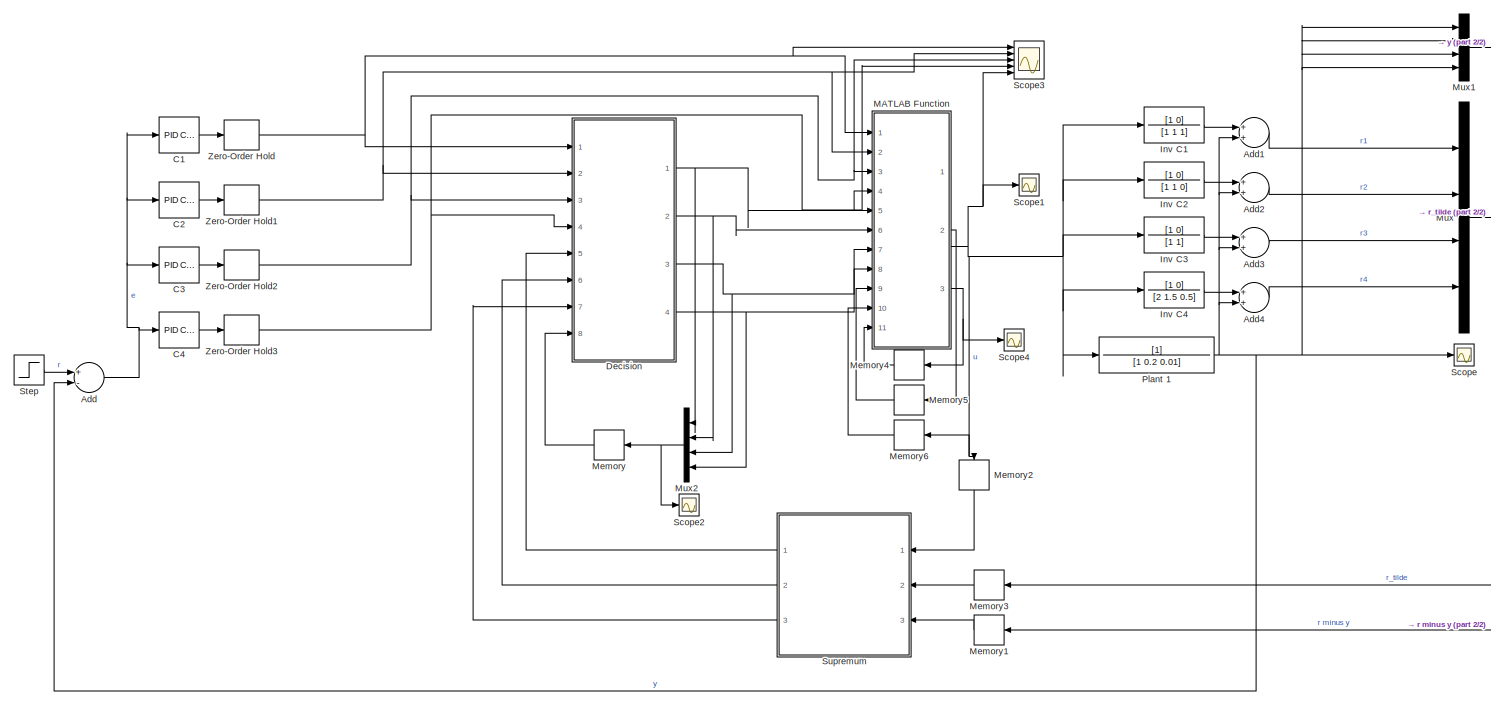
[diagram: root canvas - part 1/2, most of the canvas]
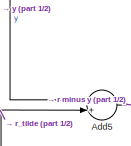
[diagram: root canvas - part 2/2, top right region]
MODEL slx_2074fb86404f
KIND model
CONFIG AbsTol = auto
CONFIG EnableMultiTasking = off
CONFIG FixedStep = auto
CONFIG MaxStep = auto
CONFIG MinStep = auto
CONFIG RelTol = 1e-3
CONFIG SampleTimeConstraint = Unconstrained
CONFIG Solver = VariableStepAuto
CONFIG SolverName = VariableStepAuto
CONFIG StartTime = 0.0
CONFIG StopTime = 100
BLOCK [Sum] Add
  InputSameDT = off
  Inputs = +-
  OutDataTypeStr = Inherit: Inherit via internal rule
  Ports = [2, 1]
  SaturateOnIntegerOverflow = off
BLOCK [Sum] Add1
  InputSameDT = off
  OutDataTypeStr = Inherit: Inherit via internal rule
  Ports = [2, 1]
  SaturateOnIntegerOverflow = off
BLOCK [Sum] Add2
  InputSameDT = off
  OutDataTypeStr = Inherit: Inherit via internal rule
  Ports = [2, 1]
  SaturateOnIntegerOverflow = off
BLOCK [Sum] Add3
  InputSameDT = off
  OutDataTypeStr = Inherit: Inherit via internal rule
  Ports = [2, 1]
  SaturateOnIntegerOverflow = off
BLOCK [Sum] Add4
  InputSameDT = off
  OutDataTypeStr = Inherit: Inherit via internal rule
  Ports = [2, 1]
  SaturateOnIntegerOverflow = off
BLOCK [Sum] Add5
  InputSameDT = off
  Inputs = -+
  OutDataTypeStr = Inherit: Inherit via internal rule
  Ports = [2, 1]
  SaturateOnIntegerOverflow = off
BLOCK [Reference] C1  REF=simulink/Continuous/PID Controller
  Ports = [1, 1]
  SourceBlock = simulink/Continuous/PID Controller
  SourceProductBaseCode = SL
  SourceProductName = Simulink
  SourceType = PID 1dof
BLOCK [Reference] C2  REF=simulink/Continuous/PID Controller
  Ports = [1, 1]
  SourceBlock = simulink/Continuous/PID Controller
  SourceProductBaseCode = SL
  SourceProductName = Simulink
  SourceType = PID 1dof
BLOCK [Reference] C3  REF=simulink/Continuous/PID Controller
  Ports = [1, 1]
  SourceBlock = simulink/Continuous/PID Controller
  SourceProductBaseCode = SL
  SourceProductName = Simulink
  SourceType = PID 1dof
BLOCK [Reference] C4  REF=simulink/Continuous/PID Controller
  Ports = [1, 1]
  SourceBlock = simulink/Continuous/PID Controller
  SourceProductBaseCode = SL
  SourceProductName = Simulink
  SourceType = PID 1dof
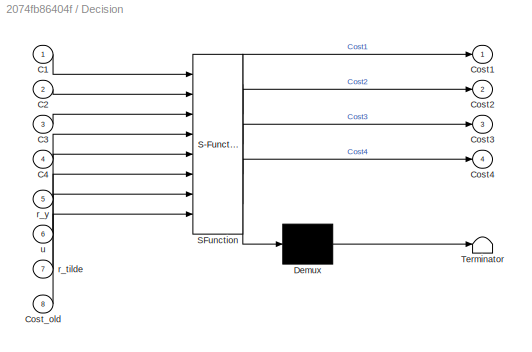
BLOCK [SubSystem] Decision
  ErrorFcn = Stateflow.Translate.translate
  PermitHierarchicalResolution = ExplicitOnly
  Ports = [8, 4]
  RequestExecContextInheritance = off
  SFBlockType = MATLAB Function
  TreatAsAtomicUnit = on
BLOCK [Demux] Decision/ Demux 
  Outputs = 1
  Ports = [1, 1]
BLOCK [S-Function] Decision/ SFunction 
  EnableBusSupport = on
  FunctionName = sf_sfun
  PortCounts = [8 5]
  Ports = [8, 5]
  SFcnIsStateOwnerBlock = off
  SFunctionDeploymentMode = off
  Tag = Stateflow S-Function HW6_switching 2
BLOCK [Terminator] Decision/ Terminator 
BLOCK [Inport] Decision/C1
  IconDisplay = Port number
BLOCK [Inport] Decision/C2
  IconDisplay = Port number
  Port = 2
BLOCK [Inport] Decision/C3
  IconDisplay = Port number
  Port = 3
BLOCK [Inport] Decision/C4
  IconDisplay = Port number
  Port = 4
BLOCK [Outport] Decision/Cost1
  IconDisplay = Port number
BLOCK [Outport] Decision/Cost2
  IconDisplay = Port number
  Port = 2
BLOCK [Outport] Decision/Cost3
  IconDisplay = Port number
  Port = 3
BLOCK [Outport] Decision/Cost4
  IconDisplay = Port number
  Port = 4
BLOCK [Inport] Decision/Cost_old
  IconDisplay = Port number
  Port = 8
BLOCK [Inport] Decision/r_tilde
  IconDisplay = Port number
  Port = 7
BLOCK [Inport] Decision/r_y
  IconDisplay = Port number
  Port = 5
BLOCK [Inport] Decision/u
  IconDisplay = Port number
  Port = 6
BLOCK [TransferFcn] Inv C1
  Denominator = [1 1 1]
  Numerator = [1 0]
BLOCK [TransferFcn] Inv C2
  Denominator = [1 1 0]
  Numerator = [1 0]
BLOCK [TransferFcn] Inv C3
  Denominator = [1 1]
  Numerator = [1 0]
BLOCK [TransferFcn] Inv C4
  Denominator = [2 1.5 0.5]
  Numerator = [1 0]
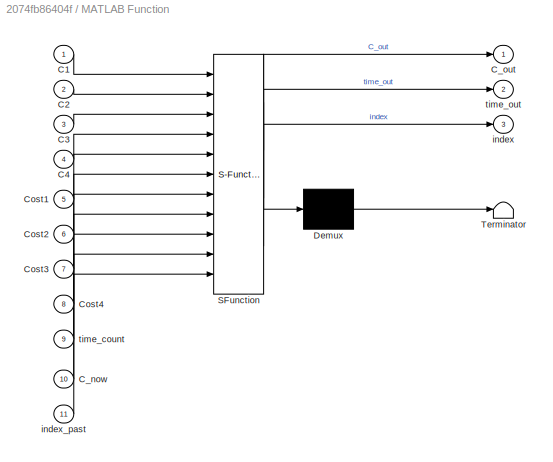
BLOCK [SubSystem] MATLAB Function
  ErrorFcn = Stateflow.Translate.translate
  PermitHierarchicalResolution = ExplicitOnly
  Ports = [11, 3]
  RequestExecContextInheritance = off
  SFBlockType = MATLAB Function
  TreatAsAtomicUnit = on
BLOCK [Demux] MATLAB Function/ Demux 
  Outputs = 1
  Ports = [1, 1]
BLOCK [S-Function] MATLAB Function/ SFunction 
  EnableBusSupport = on
  FunctionName = sf_sfun
  PortCounts = [11 4]
  Ports = [11, 4]
  SFcnIsStateOwnerBlock = off
  SFunctionDeploymentMode = off
  Tag = Stateflow S-Function HW6_switching 6
BLOCK [Terminator] MATLAB Function/ Terminator 
BLOCK [Inport] MATLAB Function/C1
  IconDisplay = Port number
BLOCK [Inport] MATLAB Function/C2
  IconDisplay = Port number
  Port = 2
BLOCK [Inport] MATLAB Function/C3
  IconDisplay = Port number
  Port = 3
BLOCK [Inport] MATLAB Function/C4
  IconDisplay = Port number
  Port = 4
BLOCK [Inport] MATLAB Function/C_now
  IconDisplay = Port number
  Port = 10
BLOCK [Outport] MATLAB Function/C_out
  IconDisplay = Port number
BLOCK [Inport] MATLAB Function/Cost1
  IconDisplay = Port number
  Port = 5
BLOCK [Inport] MATLAB Function/Cost2
  IconDisplay = Port number
  Port = 6
BLOCK [Inport] MATLAB Function/Cost3
  IconDisplay = Port number
  Port = 7
BLOCK [Inport] MATLAB Function/Cost4
  IconDisplay = Port number
  Port = 8
BLOCK [Outport] MATLAB Function/index
  IconDisplay = Port number
  Port = 3
BLOCK [Inport] MATLAB Function/index_past
  IconDisplay = Port number
  Port = 11
BLOCK [Inport] MATLAB Function/time_count
  IconDisplay = Port number
  Port = 9
BLOCK [Outport] MATLAB Function/time_out
  IconDisplay = Port number
  Port = 2
BLOCK [Memory] Memory
  InheritSampleTime = on
  InitialCondition = [0 0 0 0]
  LinearizeAsDelay = on
BLOCK [Memory] Memory1
  InitialCondition = [0 0 0 0]
BLOCK [Memory] Memory2
  InheritSampleTime = on
BLOCK [Memory] Memory3
  InitialCondition = [0 0 0 0]
BLOCK [Memory] Memory4
  InheritSampleTime = on
  InitialCondition = 1
  LinearizeAsDelay = on
BLOCK [Memory] Memory5
  InheritSampleTime = on
  LinearizeAsDelay = on
BLOCK [Memory] Memory6
  InheritSampleTime = on
  LinearizeAsDelay = on
BLOCK [Mux] Mux
  DisplayOption = bar
  Ports = [4, 1]
BLOCK [Mux] Mux1
  DisplayOption = bar
  Ports = [4, 1]
BLOCK [Mux] Mux2
  DisplayOption = bar
  Ports = [4, 1]
BLOCK [TransferFcn] Plant 1
  Denominator = [1 0.2 0.01]
BLOCK [Scope] Scope
  Floating = off
  NumInputPorts = 1
  Ports = [1]
  ScopeSpecificationString = Simulink.scopes.TimeScopeBlockCfg('CurrentConfiguration', extmgr.ConfigurationSet(extmgr.Configuration('Core','General UI',true),extmgr.Configuration('Core','Source UI',true),extmgr.Configuration('Sources','WiredSimulink',true),extmgr.Configuration('Visuals','Time Domain',true,'SerializedDisplays',{struct('MinYLimReal','-16.10739','MaxYLimReal','22.45845','YLabelReal','','MinYLimMag','0.00000','Ma...<+1354ch>
BLOCK [Scope] Scope1
  Floating = off
  NumInputPorts = 1
  Ports = [1]
  ScopeSpecificationString = Simulink.scopes.TimeScopeBlockCfg('CurrentConfiguration', extmgr.ConfigurationSet(extmgr.Configuration('Core','General UI',true),extmgr.Configuration('Core','Source UI',true),extmgr.Configuration('Sources','WiredSimulink',true,'DataLoggingVariableName','ScopeData1'),extmgr.Configuration('Visuals','Time Domain',true,'SerializedDisplays',{struct('MinYLimReal','-23.23433','MaxYLimReal','114.80381','Y...<+1416ch>
BLOCK [Scope] Scope2
  Floating = off
  NumInputPorts = 1
  Ports = [1]
  ScopeSpecificationString = Simulink.scopes.TimeScopeBlockCfg('CurrentConfiguration', extmgr.ConfigurationSet(extmgr.Configuration('Core','General UI',true),extmgr.Configuration('Core','Source UI',true),extmgr.Configuration('Sources','WiredSimulink',true,'DataLoggingVariableName','ScopeData2'),extmgr.Configuration('Visuals','Time Domain',true,'SerializedDisplays',{struct('MinYLimReal','-1275.125','MaxYLimReal','11476.125','Y...<+1573ch>
BLOCK [Scope] Scope3
  Floating = off
  NumInputPorts = 5
  Ports = [5]
  ScopeSpecificationString = Simulink.scopes.TimeScopeBlockCfg('CurrentConfiguration', extmgr.ConfigurationSet(extmgr.Configuration('Core','General UI',true),extmgr.Configuration('Core','Source UI',true),extmgr.Configuration('Sources','WiredSimulink',true,'DataLoggingVariableName','ScopeData3'),extmgr.Configuration('Visuals','Time Domain',true,'SerializedDisplays',{struct('MinYLimReal','-74.37371','MaxYLimReal','177.15263','Y...<+1603ch>
BLOCK [Scope] Scope4
  Floating = off
  NumInputPorts = 1
  Ports = [1]
  ScopeSpecificationString = Simulink.scopes.TimeScopeBlockCfg('CurrentConfiguration', extmgr.ConfigurationSet(extmgr.Configuration('Core','General UI',true),extmgr.Configuration('Core','Source UI',true),extmgr.Configuration('Sources','WiredSimulink',true,'DataLoggingVariableName','ScopeData4'),extmgr.Configuration('Visuals','Time Domain',true,'SerializedDisplays',{struct('MinYLimReal','0.75','MaxYLimReal','3.25','YLabelReal'...<+1400ch>
BLOCK [Step] Step
  SampleTime = 0
  Time = 0
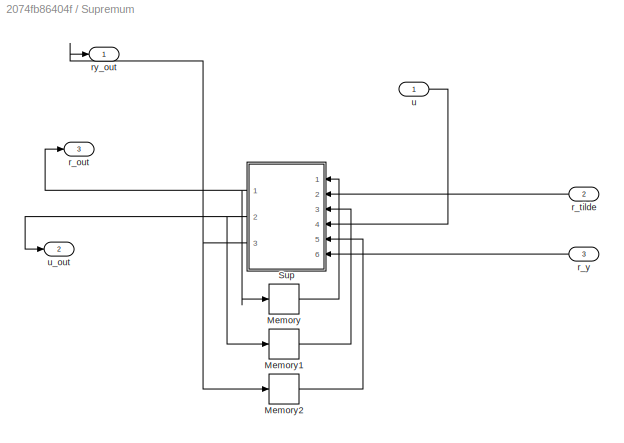
BLOCK [SubSystem] Supremum
  Ports = [3, 3]
  RequestExecContextInheritance = off
BLOCK [Memory] Supremum/Memory
  InitialCondition = [0 0 0 0]
BLOCK [Memory] Supremum/Memory1
BLOCK [Memory] Supremum/Memory2
  InitialCondition = [0 0 0 0]
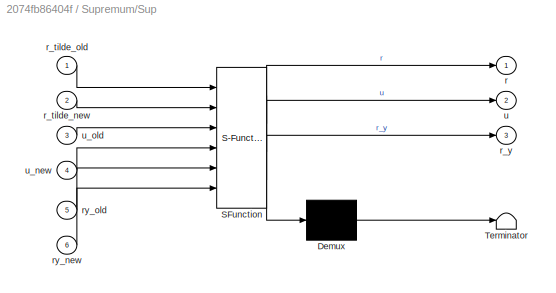
BLOCK [SubSystem] Supremum/Sup
  ErrorFcn = Stateflow.Translate.translate
  PermitHierarchicalResolution = ExplicitOnly
  Ports = [6, 3]
  RequestExecContextInheritance = off
  SFBlockType = MATLAB Function
  TreatAsAtomicUnit = on
BLOCK [Demux] Supremum/Sup/ Demux 
  Outputs = 1
  Ports = [1, 1]
BLOCK [S-Function] Supremum/Sup/ SFunction 
  EnableBusSupport = on
  FunctionName = sf_sfun
  PortCounts = [6 4]
  Ports = [6, 4]
  SFcnIsStateOwnerBlock = off
  SFunctionDeploymentMode = off
  Tag = Stateflow S-Function HW6_switching 1
BLOCK [Terminator] Supremum/Sup/ Terminator 
BLOCK [Outport] Supremum/Sup/r
  IconDisplay = Port number
BLOCK [Inport] Supremum/Sup/r_tilde_new
  IconDisplay = Port number
  Port = 2
BLOCK [Inport] Supremum/Sup/r_tilde_old
  IconDisplay = Port number
BLOCK [Outport] Supremum/Sup/r_y
  IconDisplay = Port number
  Port = 3
BLOCK [Inport] Supremum/Sup/ry_new
  IconDisplay = Port number
  Port = 6
BLOCK [Inport] Supremum/Sup/ry_old
  IconDisplay = Port number
  Port = 5
BLOCK [Outport] Supremum/Sup/u
  IconDisplay = Port number
  Port = 2
BLOCK [Inport] Supremum/Sup/u_new
  IconDisplay = Port number
  Port = 4
BLOCK [Inport] Supremum/Sup/u_old
  IconDisplay = Port number
  Port = 3
BLOCK [Outport] Supremum/r_out
  IconDisplay = Port number
  Port = 3
  PortDimensions = 4
BLOCK [Inport] Supremum/r_tilde
  IconDisplay = Port number
  Port = 2
BLOCK [Inport] Supremum/r_y
  IconDisplay = Port number
  Port = 3
BLOCK [Outport] Supremum/ry_out
  IconDisplay = Port number
  PortDimensions = 4
BLOCK [Inport] Supremum/u
  IconDisplay = Port number
BLOCK [Outport] Supremum/u_out
  IconDisplay = Port number
  Port = 2
BLOCK [ZeroOrderHold] Zero-Order Hold
  SampleTime = 0.1
BLOCK [ZeroOrderHold] Zero-Order Hold1
  SampleTime = 0.1
BLOCK [ZeroOrderHold] Zero-Order Hold2
  SampleTime = 0.1
BLOCK [ZeroOrderHold] Zero-Order Hold3
  SampleTime = 0.1
LINE Add1:1 -> Mux:1
LINE Add2:1 -> Mux:2
LINE Add3:1 -> Mux:3
LINE Add4:1 -> Mux:4
LINE Add5:1 -> Memory1:1
NET Add:1 -> C1:1, C2:1, C3:1, C4:1
LINE C1:1 -> Zero-Order Hold:1
LINE C2:1 -> Zero-Order Hold1:1
LINE C3:1 -> Zero-Order Hold2:1
LINE C4:1 -> Zero-Order Hold3:1
NET Decision:1 -> MATLAB Function:5, Mux2:1
NET Decision:2 -> MATLAB Function:6, Mux2:2
NET Decision:3 -> MATLAB Function:7, Mux2:3
NET Decision:4 -> MATLAB Function:8, Mux2:4
LINE Inv C1:1 -> Add1:1
LINE Inv C2:1 -> Add2:1
LINE Inv C3:1 -> Add3:1
LINE Inv C4:1 -> Add4:1
NET MATLAB Function:1 -> Inv C1:1, Inv C2:1, Inv C3:1, Inv C4:1, Memory2:1, Memory6:1, Plant 1:1, Scope1:1, Scope3:5
LINE MATLAB Function:2 -> Memory5:1
NET MATLAB Function:3 -> Memory4:1, Scope4:1
LINE Memory1:1 -> Supremum:3
LINE Memory2:1 -> Supremum:1
LINE Memory3:1 -> Supremum:2
LINE Memory4:1 -> MATLAB Function:11
LINE Memory5:1 -> MATLAB Function:9
LINE Memory6:1 -> MATLAB Function:10
LINE Memory:1 -> Decision:8
LINE Mux1:1 -> Add5:1
NET Mux2:1 -> Memory:1, Scope2:1
NET Mux:1 -> Add5:2, Memory3:1
NET Plant 1:1 -> Add1:2, Add2:2, Add3:2, Add4:2, Add:2, Mux1:1, Mux1:2, Mux1:3, Mux1:4, Scope:1
LINE Step:1 -> Add:1
LINE Supremum/Memory1:1 -> Supremum/Sup:3
LINE Supremum/Memory2:1 -> Supremum/Sup:5
LINE Supremum/Memory:1 -> Supremum/Sup:1
NET Supremum/Sup:1 -> Supremum/Memory:1, Supremum/r_out:1
NET Supremum/Sup:2 -> Supremum/Memory1:1, Supremum/u_out:1
NET Supremum/Sup:3 -> Supremum/Memory2:1, Supremum/ry_out:1
LINE Supremum/r_tilde:1 -> Supremum/Sup:2
LINE Supremum/r_y:1 -> Supremum/Sup:6
LINE Supremum/u:1 -> Supremum/Sup:4
LINE Supremum:1 -> Decision:5
LINE Supremum:2 -> Decision:6
LINE Supremum:3 -> Decision:7
NET Zero-Order Hold1:1 -> Decision:2, MATLAB Function:2, Scope3:2
NET Zero-Order Hold2:1 -> Decision:3, MATLAB Function:3, Scope3:3
NET Zero-Order Hold3:1 -> Decision:4, MATLAB Function:4, Scope3:4
NET Zero-Order Hold:1 -> Decision:1, MATLAB Function:1, Scope3:1
note: NET lines group one-source signal fan-out (src -> all destinations, sorted); 1:1 wires keep LINE
CHART Supremum/Sup states=1 transitions=1
  STATE_LABEL 'eML_blk_kernel()'
  STATE_LABEL 'SCRIPT:\nfunction [r, u, r_y] = fcn(r_tilde_old, r_tilde_new, u_old, u_new, ry_old, ry_new)\n\n%% U\nif abs(u_new) > abs(u_old)\n    u = u_new;\nelse\n    u = u_old;\nend\n\n%% Error\nif abs(ry_old) > abs(ry_new)\n    r_y = ry_old;\nelse\n    r_y = ry_new;\nend\n\n%% R_tilde\nif abs(r_tilde_old) > abs(r_tilde_new)\n    r = r_tilde_old;\nelse\n    r = r_tilde_new;\nend\n\nend\n'
CHART Decision states=1 transitions=1
  STATE_LABEL 'eML_blk_kernel()'
  STATE_LABEL 'SCRIPT:\nfunction [Cost1, Cost2, Cost3, Cost4] = fcn(C1, C2, C3, C4, r_y, u, r_tilde, Cost_old)\n% Make a decision of which controller should be used given situation\n% Constants\na = 1;\n\ninput = [C1 C2 C3 C4];\nCost = zeros(4);\n% Calculate the cost of each one\nfor i = 1:1:4\n    Cost_update = (u^2 + r_y(i)^2) / (r_tilde(i)^2 + a);\n    if Cost_update > Cost_old(i)\n        Cost(i) = Cost_update;\n    else...<+115ch>'
CHART MATLAB Function states=1 transitions=1
  STATE_LABEL 'eML_blk_kernel()'
  STATE_LABEL 'SCRIPT:\nfunction [C_out, time_out,index] = fcn(C1, C2, C3, C4, Cost1, Cost2, Cost3, Cost4, time_count, C_now, index_past)\nC = [C1 C2 C3 C4];\ndt = 0.1;\nindex = index_past; \n\nif time_count > 5\n    Cost = [Cost1 Cost2 Cost3 Cost4];\n    [maximum, index] = max(Cost);\n    C_out = C(index);\nelse\n    C_out = C_now;\nend\n\nif index == index_past\n    time_out = time_count + dt;\nelse\n    time_out = 0;\nend\n\nend'
